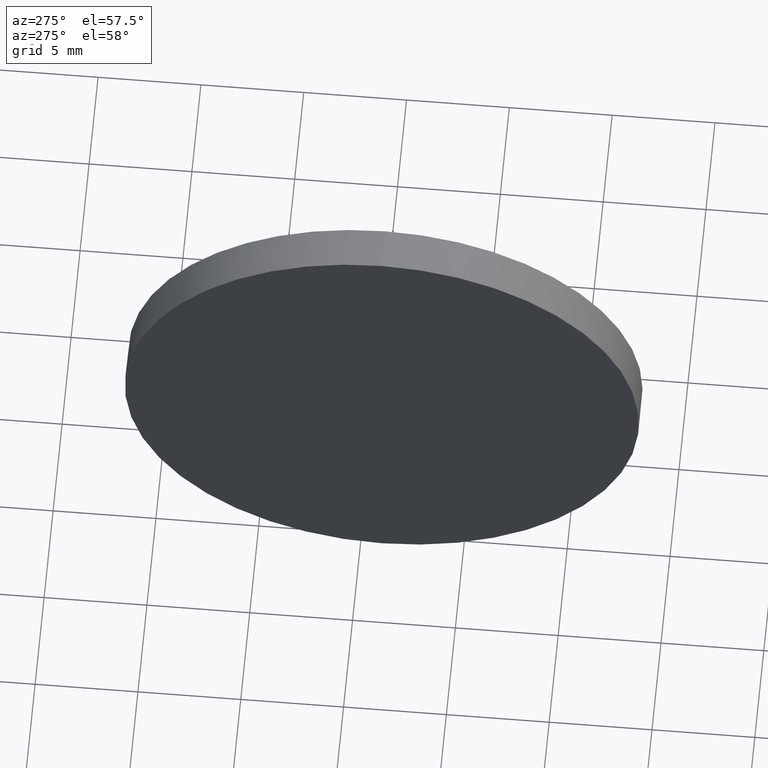
[diagram: clean part render]
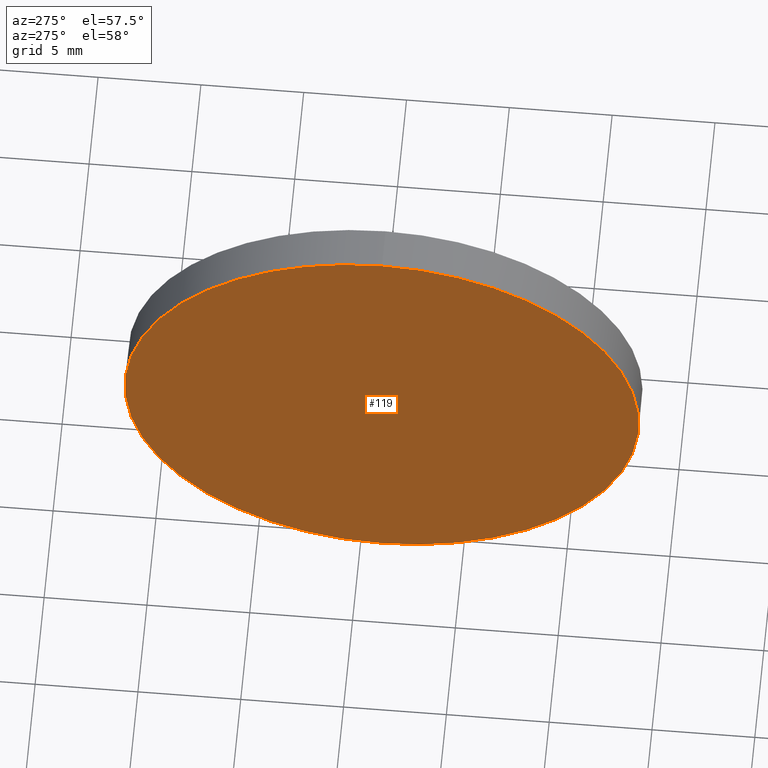
[diagram: same view with one face highlighted and labeled with its STEP entity id]
A machine part, auxiliary view. The second image highlights one B-rep face of the part: STEP entity #119.
In plain terms, the highlighted planar face has unit normal (1, 0, 0).
Its self-contained STEP definition (entity closure, byte-faithful):
#6 = CIRCLE ( 'NONE', #85, 12.50000000000000400 ) ;
#7 = CARTESIAN_POINT ( 'NONE',  ( 694.1938871289664800, 53.94199021685585600, -12.50000000000000400 ) ) ;
#25 = EDGE_LOOP ( 'NONE', ( #31, #43 ) ) ;
#31 = ORIENTED_EDGE ( 'NONE', *, *, #76, .T. ) ;
#32 = AXIS2_PLACEMENT_3D ( 'NONE', #112, #90, #74 ) ;
#34 = DIRECTION ( 'NONE',  ( -1.000000000000000000, -0.0000000000000000000, -0.0000000000000000000 ) ) ;
#43 = ORIENTED_EDGE ( 'NONE', *, *, #66, .T. ) ;
#48 = DIRECTION ( 'NONE',  ( 0.0000000000000000000, 0.0000000000000000000, 1.000000000000000000 ) ) ;
#51 = DIRECTION ( 'NONE',  ( -1.000000000000000000, -0.0000000000000000000, -0.0000000000000000000 ) ) ;
#63 = VERTEX_POINT ( 'NONE', #7 ) ;
#66 = EDGE_CURVE ( 'NONE', #63, #111, #75, .T. ) ;
#74 = DIRECTION ( 'NONE',  ( 0.0000000000000000000, 0.0000000000000000000, -1.000000000000000000 ) ) ;
#75 = CIRCLE ( 'NONE', #129, 12.50000000000000400 ) ;
#76 = EDGE_CURVE ( 'NONE', #111, #63, #6, .T. ) ;
#77 = CARTESIAN_POINT ( 'NONE',  ( 694.1938871289664800, 53.94199021685585600, 0.0000000000000000000 ) ) ;
#85 = AXIS2_PLACEMENT_3D ( 'NONE', #77, #34, #48 ) ;
#90 = DIRECTION ( 'NONE',  ( 1.000000000000000000, 0.0000000000000000000, 0.0000000000000000000 ) ) ;
#111 = VERTEX_POINT ( 'NONE', #125 ) ;
#112 = CARTESIAN_POINT ( 'NONE',  ( 694.1938871289664800, 53.94199021685585600, 0.0000000000000000000 ) ) ;
#119 = ADVANCED_FACE ( 'NONE', ( #184 ), #121, .F. ) ;
#121 = PLANE ( 'NONE',  #32 ) ;
#125 = CARTESIAN_POINT ( 'NONE',  ( 694.1938871289664800, 53.94199021685585600, 12.50000000000000400 ) ) ;
#129 = AXIS2_PLACEMENT_3D ( 'NONE', #137, #51, #151 ) ;
#137 = CARTESIAN_POINT ( 'NONE',  ( 694.1938871289664800, 53.94199021685585600, 0.0000000000000000000 ) ) ;
#151 = DIRECTION ( 'NONE',  ( 0.0000000000000000000, 0.0000000000000000000, 1.000000000000000000 ) ) ;
#184 = FACE_OUTER_BOUND ( 'NONE', #25, .T. ) ;